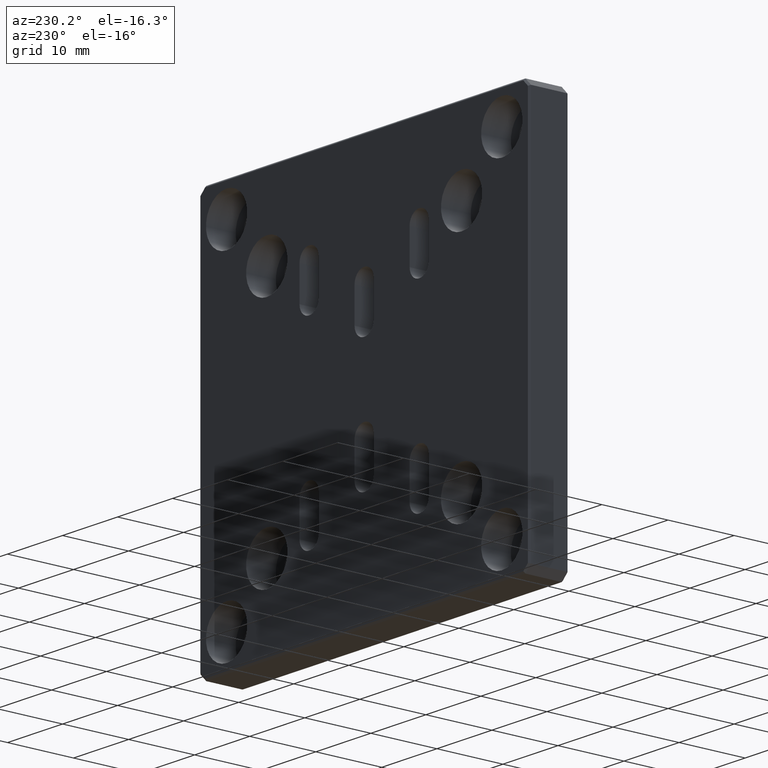
[diagram: clean part render]
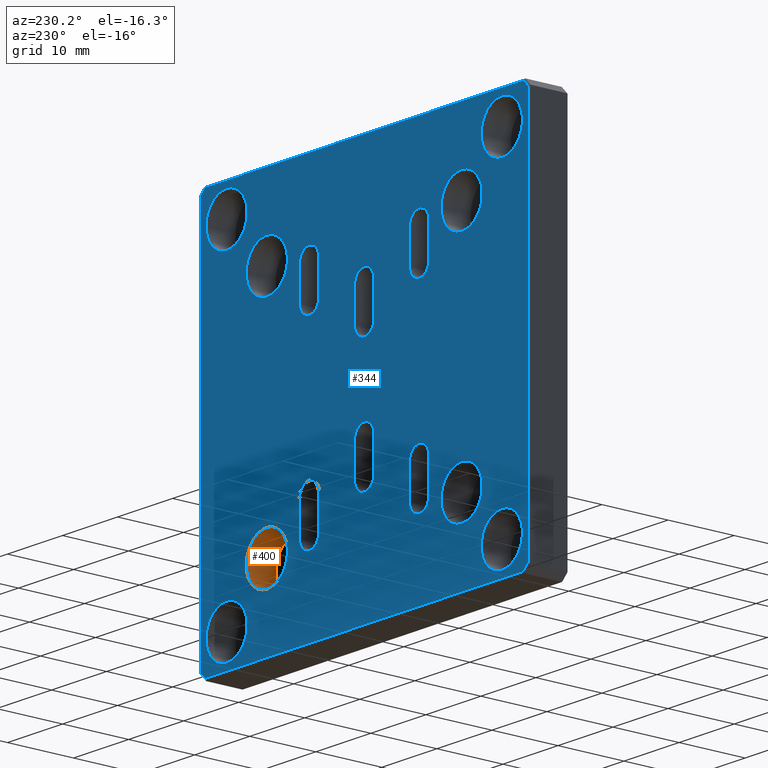
[diagram: same view with the hole feature highlighted: cylindrical wall and planar end face, labeled with their STEP entity ids]
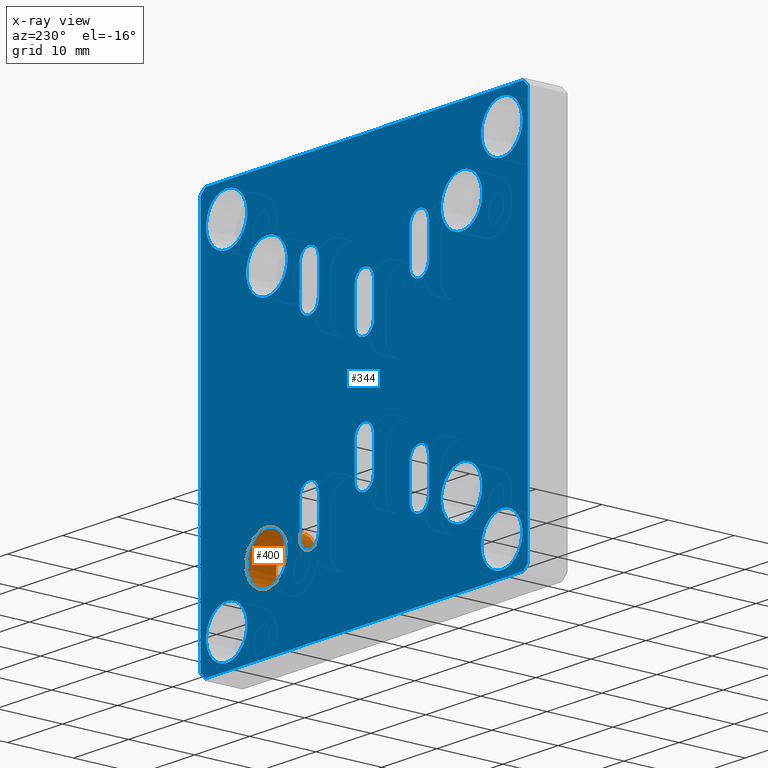
[diagram: x-ray of the same camera — body ghosted, the hole faces saturated]
A machine part, auxiliary view. The highlighted faces form one hole feature of diameter 7.5 mm: the cylindrical wall (entity #400, orange) and its adjacent planar end face (entity #344, blue) — they share a circular edge in the B-rep.
The next image is the same camera in x-ray (body ghosted, the hole faces saturated) — the bore reads through the body.
Wall:
#86 = EDGE_LOOP ( 'NONE', ( #2276 ) ) ;
#127 = CIRCLE ( 'NONE', #378, 3.750000000000003553 ) ;
#133 = DIRECTION ( 'NONE',  ( 0.000000000000000000, 0.000000000000000000, 1.000000000000000000 ) ) ;
#273 = CARTESIAN_POINT ( 'NONE',  ( 17.69999999999999218, 1.499999999999999556, -13.94999999999999041 ) ) ;
#281 = AXIS2_PLACEMENT_3D ( 'NONE', #790, #594, #133 ) ;
#304 = CYLINDRICAL_SURFACE ( 'NONE', #999, 3.750000000000003553 ) ;
#378 = AXIS2_PLACEMENT_3D ( 'NONE', #2541, #2336, #434 ) ;
#400 = ADVANCED_FACE ( 'NONE', ( #789, #1485 ), #304, .F. ) ;
#434 = DIRECTION ( 'NONE',  ( 0.000000000000000000, 0.000000000000000000, 1.000000000000000000 ) ) ;
#487 = VERTEX_POINT ( 'NONE', #273 ) ;
#594 = DIRECTION ( 'NONE',  ( -0.000000000000000000, 1.000000000000000000, -0.000000000000000000 ) ) ;
#789 = FACE_OUTER_BOUND ( 'NONE', #1753, .T. ) ;
#790 = CARTESIAN_POINT ( 'NONE',  ( 17.69999999999999218, 1.499999999999999556, -17.69999999999999218 ) ) ;
#999 = AXIS2_PLACEMENT_3D ( 'NONE', #2956, #1011, #2656 ) ;
#1011 = DIRECTION ( 'NONE',  ( -0.000000000000000000, 1.000000000000000000, -0.000000000000000000 ) ) ;
#1283 = ORIENTED_EDGE ( 'NONE', *, *, #1644, .F. ) ;
#1443 = CARTESIAN_POINT ( 'NONE',  ( 17.69999999999999218, 6.000000000000003553, -13.94999999999999041 ) ) ;
#1485 = FACE_OUTER_BOUND ( 'NONE', #86, .T. ) ;
#1644 = EDGE_CURVE ( 'NONE', #487, #487, #2387, .T. ) ;
#1753 = EDGE_LOOP ( 'NONE', ( #1283 ) ) ;
#2113 = VERTEX_POINT ( 'NONE', #1443 ) ;
#2276 = ORIENTED_EDGE ( 'NONE', *, *, #2582, .T. ) ;
#2336 = DIRECTION ( 'NONE',  ( -0.000000000000000000, 1.000000000000000000, -0.000000000000000000 ) ) ;
#2387 = CIRCLE ( 'NONE', #281, 3.750000000000003553 ) ;
#2541 = CARTESIAN_POINT ( 'NONE',  ( 17.69999999999999218, 6.000000000000003553, -17.69999999999999218 ) ) ;
#2582 = EDGE_CURVE ( 'NONE', #2113, #2113, #127, .T. ) ;
#2656 = DIRECTION ( 'NONE',  ( 0.000000000000000000, 0.000000000000000000, 1.000000000000000000 ) ) ;
#2956 = CARTESIAN_POINT ( 'NONE',  ( 17.69999999999999218, 6.000000000000000000, -17.69999999999999218 ) ) ;
End face:
#5 = DIRECTION ( 'NONE',  ( 0.000000000000000000, 0.000000000000000000, -1.000000000000000000 ) ) ;
#19 = EDGE_LOOP ( 'NONE', ( #1852 ) ) ;
#21 = AXIS2_PLACEMENT_3D ( 'NONE', #831, #96, #336 ) ;
#26 = LINE ( 'NONE', #956, #2483 ) ;
#31 = AXIS2_PLACEMENT_3D ( 'NONE', #1971, #2254, #2452 ) ;
#34 = CARTESIAN_POINT ( 'NONE',  ( -25.00000000000000000, 6.000000000000003553, -21.24999999999998934 ) ) ;
#35 = LINE ( 'NONE', #978, #914 ) ;
#36 = CARTESIAN_POINT ( 'NONE',  ( 4.336808689942017736E-16, 6.000000000000000000, -11.90000000000000036 ) ) ;
#69 = EDGE_LOOP ( 'NONE', ( #657, #1104, #2997, #2372 ) ) ;
#74 = VECTOR ( 'NONE', #1289, 1000.000000000000000 ) ;
#79 = DIRECTION ( 'NONE',  ( 0.000000000000000000, 1.000000000000000000, 0.000000000000000000 ) ) ;
#84 = ORIENTED_EDGE ( 'NONE', *, *, #1230, .F. ) ;
#95 = VERTEX_POINT ( 'NONE', #2763 ) ;
#96 = DIRECTION ( 'NONE',  ( 0.000000000000000000, 1.000000000000000000, 0.000000000000000000 ) ) ;
#114 = DIRECTION ( 'NONE',  ( 0.000000000000000000, 0.000000000000000000, 1.000000000000000000 ) ) ;
#116 = VECTOR ( 'NONE', #125, 1000.000000000000000 ) ;
#117 = CARTESIAN_POINT ( 'NONE',  ( -8.250000000000001776, 6.000000000000000000, -11.75000000000000355 ) ) ;
#121 = VERTEX_POINT ( 'NONE', #2272 ) ;
#125 = DIRECTION ( 'NONE',  ( 0.000000000000000000, 0.000000000000000000, -1.000000000000000000 ) ) ;
#126 = VERTEX_POINT ( 'NONE', #1517 ) ;
#127 = CIRCLE ( 'NONE', #378, 3.750000000000003553 ) ;
#134 = CARTESIAN_POINT ( 'NONE',  ( 10.00000000000000178, 6.000000000000000000, 11.75000000000000355 ) ) ;
#161 = LINE ( 'NONE', #874, #1360 ) ;
#165 = CARTESIAN_POINT ( 'NONE',  ( 8.250000000000001776, 6.000000000000000000, 0.000000000000000000 ) ) ;
#171 = VECTOR ( 'NONE', #1401, 1000.000000000000000 ) ;
#181 = EDGE_CURVE ( 'NONE', #2886, #2886, #1048, .T. ) ;
#182 = VECTOR ( 'NONE', #1446, 1000.000000000000000 ) ;
#183 = CARTESIAN_POINT ( 'NONE',  ( 1.750000000000000444, 6.000000000000000000, 0.000000000000000000 ) ) ;
#196 = CARTESIAN_POINT ( 'NONE',  ( -11.75000000000000178, 6.000000000000000000, -11.75000000000000355 ) ) ;
#199 = VERTEX_POINT ( 'NONE', #2504 ) ;
#205 = ORIENTED_EDGE ( 'NONE', *, *, #849, .T. ) ;
#235 = CIRCLE ( 'NONE', #1947, 1.749999999999999778 ) ;
#246 = FACE_BOUND ( 'NONE', #2845, .T. ) ;
#247 = DIRECTION ( 'NONE',  ( 0.000000000000000000, 0.000000000000000000, 1.000000000000000000 ) ) ;
#252 = CARTESIAN_POINT ( 'NONE',  ( 24.99999999999997158, 6.000000000000003553, -24.99999999999996447 ) ) ;
#258 = CIRCLE ( 'NONE', #1880, 1.749999999999999778 ) ;
#260 = FACE_BOUND ( 'NONE', #2244, .T. ) ;
#261 = DIRECTION ( 'NONE',  ( 0.000000000000000000, 1.000000000000000000, 0.000000000000000000 ) ) ;
#264 = ORIENTED_EDGE ( 'NONE', *, *, #2016, .T. ) ;
#270 = EDGE_CURVE ( 'NONE', #862, #2838, #258, .T. ) ;
#271 = AXIS2_PLACEMENT_3D ( 'NONE', #2937, #79, #2717 ) ;
#328 = CARTESIAN_POINT ( 'NONE',  ( -10.00000000000000178, 6.000000000000000000, -11.75000000000000355 ) ) ;
#334 = DIRECTION ( 'NONE',  ( 0.000000000000000000, 0.000000000000000000, 1.000000000000000000 ) ) ;
#336 = DIRECTION ( 'NONE',  ( 0.000000000000000000, 0.000000000000000000, 1.000000000000000000 ) ) ;
#344 = ADVANCED_FACE ( 'NONE', ( #493, #1436, #1646, #2354, #478, #2585, #2368, #246, #2118, #955, #1891, #2835, #727, #2602, #260 ), #1079, .T. ) ;
#352 = DIRECTION ( 'NONE',  ( -0.7071067811865474617, 0.000000000000000000, 0.7071067811865474617 ) ) ;
#356 = ORIENTED_EDGE ( 'NONE', *, *, #1022, .T. ) ;
#373 = CIRCLE ( 'NONE', #2093, 1.749999999999998002 ) ;
#378 = AXIS2_PLACEMENT_3D ( 'NONE', #2541, #2336, #434 ) ;
#393 = EDGE_LOOP ( 'NONE', ( #2780, #2463, #1514, #2555 ) ) ;
#401 = CARTESIAN_POINT ( 'NONE',  ( 4.336808689942017736E-16, 6.000000000000000000, -6.899999999999999467 ) ) ;
#402 = CARTESIAN_POINT ( 'NONE',  ( 8.250000000000001776, 6.000000000000000000, 16.75000000000000355 ) ) ;
#413 = DIRECTION ( 'NONE',  ( 0.000000000000000000, 0.000000000000000000, 1.000000000000000000 ) ) ;
#423 = AXIS2_PLACEMENT_3D ( 'NONE', #328, #993, #573 ) ;
#426 = LINE ( 'NONE', #1376, #116 ) ;
#431 = CIRCLE ( 'NONE', #1747, 1.749999999999999778 ) ;
#434 = DIRECTION ( 'NONE',  ( 0.000000000000000000, 0.000000000000000000, 1.000000000000000000 ) ) ;
#467 = CARTESIAN_POINT ( 'NONE',  ( -28.89644660940672694, 6.000000000000000000, 29.74999999999999289 ) ) ;
#478 = FACE_BOUND ( 'NONE', #2524, .T. ) ;
#485 = DIRECTION ( 'NONE',  ( 0.000000000000000000, 1.000000000000000000, 0.000000000000000000 ) ) ;
#493 = FACE_BOUND ( 'NONE', #2537, .T. ) ;
#510 = ORIENTED_EDGE ( 'NONE', *, *, #2447, .T. ) ;
#525 = VERTEX_POINT ( 'NONE', #903 ) ;
#528 = AXIS2_PLACEMENT_3D ( 'NONE', #2007, #1256, #840 ) ;
#531 = VERTEX_POINT ( 'NONE', #734 ) ;
#541 = EDGE_CURVE ( 'NONE', #525, #651, #161, .T. ) ;
#554 = ORIENTED_EDGE ( 'NONE', *, *, #1791, .T. ) ;
#560 = VECTOR ( 'NONE', #2315, 1000.000000000000000 ) ;
#569 = CIRCLE ( 'NONE', #2490, 1.749999999999999778 ) ;
#573 = DIRECTION ( 'NONE',  ( 0.000000000000000000, 0.000000000000000000, 1.000000000000000000 ) ) ;
#574 = VERTEX_POINT ( 'NONE', #2971 ) ;
#576 = LINE ( 'NONE', #825, #1452 ) ;
#589 = VERTEX_POINT ( 'NONE', #2157 ) ;
#597 = CARTESIAN_POINT ( 'NONE',  ( -29.32322330470335814, 6.000000000000000000, -29.32322330470335814 ) ) ;
#611 = LINE ( 'NONE', #165, #74 ) ;
#612 = VERTEX_POINT ( 'NONE', #735 ) ;
#628 = CARTESIAN_POINT ( 'NONE',  ( 24.99999999999997868, 6.000000000000003553, 25.00000000000003908 ) ) ;
#639 = CARTESIAN_POINT ( 'NONE',  ( 28.89644660940671983, 6.000000000000000000, 29.74999999999999289 ) ) ;
#651 = VERTEX_POINT ( 'NONE', #3052 ) ;
#657 = ORIENTED_EDGE ( 'NONE', *, *, #1458, .F. ) ;
#670 = CIRCLE ( 'NONE', #765, 3.750000000000003553 ) ;
#687 = CARTESIAN_POINT ( 'NONE',  ( 29.75000000000000000, 6.000000000000000000, -29.00000000000001066 ) ) ;
#688 = EDGE_CURVE ( 'NONE', #95, #2229, #35, .T. ) ;
#705 = DIRECTION ( 'NONE',  ( 0.7071067811865474617, 0.000000000000000000, -0.7071067811865474617 ) ) ;
#709 = CARTESIAN_POINT ( 'NONE',  ( 17.69999999999999218, 6.000000000000003553, 17.70000000000000639 ) ) ;
#710 = ORIENTED_EDGE ( 'NONE', *, *, #1926, .T. ) ;
#719 = VERTEX_POINT ( 'NONE', #2393 ) ;
#725 = AXIS2_PLACEMENT_3D ( 'NONE', #36, #968, #1920 ) ;
#727 = FACE_BOUND ( 'NONE', #1292, .T. ) ;
#733 = CARTESIAN_POINT ( 'NONE',  ( 10.00000000000000178, 6.000000000000000000, 16.75000000000000355 ) ) ;
#734 = CARTESIAN_POINT ( 'NONE',  ( 24.99999999999997158, 6.000000000000003553, -21.24999999999996092 ) ) ;
#735 = CARTESIAN_POINT ( 'NONE',  ( 29.75000000000000000, 6.000000000000000000, -28.89644660940674115 ) ) ;
#736 = ORIENTED_EDGE ( 'NONE', *, *, #2895, .F. ) ;
#740 = CARTESIAN_POINT ( 'NONE',  ( -10.00000000000000178, 6.000000000000000000, 16.75000000000000355 ) ) ;
#741 = ORIENTED_EDGE ( 'NONE', *, *, #1879, .T. ) ;
#745 = DIRECTION ( 'NONE',  ( 0.7071067811865474617, 0.000000000000000000, 0.7071067811865474617 ) ) ;
#749 = CARTESIAN_POINT ( 'NONE',  ( -17.70000000000000639, 6.000000000000003553, 17.70000000000000639 ) ) ;
#750 = EDGE_CURVE ( 'NONE', #1262, #525, #1210, .T. ) ;
#765 = AXIS2_PLACEMENT_3D ( 'NONE', #749, #1935, #1225 ) ;
#773 = CARTESIAN_POINT ( 'NONE',  ( 1.750000000000000444, 6.000000000000000000, 11.90000000000000036 ) ) ;
#774 = ORIENTED_EDGE ( 'NONE', *, *, #1224, .T. ) ;
#792 = VERTEX_POINT ( 'NONE', #1037 ) ;
#798 = CARTESIAN_POINT ( 'NONE',  ( -10.00000000000000178, 6.000000000000000000, 11.75000000000000355 ) ) ;
#802 = VECTOR ( 'NONE', #2932, 1000.000000000000000 ) ;
#808 = CARTESIAN_POINT ( 'NONE',  ( 8.250000000000001776, 6.000000000000000000, -11.75000000000000355 ) ) ;
#813 = DIRECTION ( 'NONE',  ( 0.000000000000000000, 0.000000000000000000, 1.000000000000000000 ) ) ;
#822 = CARTESIAN_POINT ( 'NONE',  ( -11.75000000000000178, 6.000000000000000000, -16.75000000000000355 ) ) ;
#825 = CARTESIAN_POINT ( 'NONE',  ( -11.75000000000000178, 6.000000000000000000, 0.000000000000000000 ) ) ;
#831 = CARTESIAN_POINT ( 'NONE',  ( 10.00000000000000178, 6.000000000000000000, -11.75000000000000355 ) ) ;
#833 = VERTEX_POINT ( 'NONE', #1759 ) ;
#840 = DIRECTION ( 'NONE',  ( 0.000000000000000000, 0.000000000000000000, 1.000000000000000000 ) ) ;
#846 = DIRECTION ( 'NONE',  ( 0.000000000000000000, 1.000000000000000000, 0.000000000000000000 ) ) ;
#849 = EDGE_CURVE ( 'NONE', #1166, #915, #2533, .T. ) ;
#854 = EDGE_CURVE ( 'NONE', #121, #2547, #2913, .T. ) ;
#862 = VERTEX_POINT ( 'NONE', #822 ) ;
#864 = CARTESIAN_POINT ( 'NONE',  ( -8.250000000000001776, 6.000000000000000000, 11.75000000000000355 ) ) ;
#867 = VECTOR ( 'NONE', #1832, 1000.000000000000114 ) ;
#874 = CARTESIAN_POINT ( 'NONE',  ( -11.75000000000000178, 6.000000000000000000, 0.000000000000000000 ) ) ;
#882 = VERTEX_POINT ( 'NONE', #2697 ) ;
#903 = CARTESIAN_POINT ( 'NONE',  ( -11.75000000000000178, 6.000000000000000000, 11.75000000000000355 ) ) ;
#914 = VECTOR ( 'NONE', #745, 1000.000000000000114 ) ;
#915 = VERTEX_POINT ( 'NONE', #196 ) ;
#917 = AXIS2_PLACEMENT_3D ( 'NONE', #252, #1857, #2329 ) ;
#919 = DIRECTION ( 'NONE',  ( 1.000000000000000000, 0.000000000000000000, 0.000000000000000000 ) ) ;
#923 = VERTEX_POINT ( 'NONE', #639 ) ;
#938 = CARTESIAN_POINT ( 'NONE',  ( -8.250000000000001776, 6.000000000000000000, 0.000000000000000000 ) ) ;
#948 = CARTESIAN_POINT ( 'NONE',  ( -17.70000000000000639, 6.000000000000003553, -13.94999999999999041 ) ) ;
#952 = LINE ( 'NONE', #2611, #3041 ) ;
#955 = FACE_BOUND ( 'NONE', #1234, .T. ) ;
#956 = CARTESIAN_POINT ( 'NONE',  ( 8.250000000000001776, 6.000000000000000000, 0.000000000000000000 ) ) ;
#968 = DIRECTION ( 'NONE',  ( -0.000000000000000000, -1.000000000000000000, -0.000000000000000000 ) ) ;
#970 = AXIS2_PLACEMENT_3D ( 'NONE', #2601, #2847, #2860 ) ;
#974 = CIRCLE ( 'NONE', #528, 3.750000000000003553 ) ;
#978 = CARTESIAN_POINT ( 'NONE',  ( -29.32322330470335814, 6.000000000000000000, 29.32322330470335814 ) ) ;
#983 = DIRECTION ( 'NONE',  ( -0.000000000000000000, -1.000000000000000000, -0.000000000000000000 ) ) ;
#993 = DIRECTION ( 'NONE',  ( -0.000000000000000000, -1.000000000000000000, -0.000000000000000000 ) ) ;
#1000 = AXIS2_PLACEMENT_3D ( 'NONE', #628, #1551, #413 ) ;
#1009 = CIRCLE ( 'NONE', #2384, 1.749999999999999778 ) ;
#1014 = VECTOR ( 'NONE', #1862, 1000.000000000000000 ) ;
#1019 = ORIENTED_EDGE ( 'NONE', *, *, #688, .T. ) ;
#1020 = EDGE_CURVE ( 'NONE', #833, #2499, #426, .T. ) ;
#1022 = EDGE_CURVE ( 'NONE', #2229, #923, #2411, .T. ) ;
#1035 = EDGE_CURVE ( 'NONE', #1671, #612, #2112, .T. ) ;
#1037 = CARTESIAN_POINT ( 'NONE',  ( -1.749999999999999556, 6.000000000000000000, 6.899999999999999467 ) ) ;
#1041 = CARTESIAN_POINT ( 'NONE',  ( 0.000000000000000000, 6.000000000000000000, 0.000000000000000000 ) ) ;
#1044 = DIRECTION ( 'NONE',  ( -0.000000000000000000, -1.000000000000000000, -0.000000000000000000 ) ) ;
#1048 = CIRCLE ( 'NONE', #1000, 3.750000000000003553 ) ;
#1055 = EDGE_LOOP ( 'NONE', ( #1546, #2925, #554, #205 ) ) ;
#1077 = ORIENTED_EDGE ( 'NONE', *, *, #1342, .T. ) ;
#1079 = PLANE ( 'NONE',  #1352 ) ;
#1085 = ORIENTED_EDGE ( 'NONE', *, *, #2983, .T. ) ;
#1090 = EDGE_CURVE ( 'NONE', #531, #531, #3034, .T. ) ;
#1101 = LINE ( 'NONE', #597, #1307 ) ;
#1104 = ORIENTED_EDGE ( 'NONE', *, *, #541, .F. ) ;
#1134 = VERTEX_POINT ( 'NONE', #1869 ) ;
#1143 = VERTEX_POINT ( 'NONE', #1720 ) ;
#1157 = LINE ( 'NONE', #2088, #1014 ) ;
#1165 = VERTEX_POINT ( 'NONE', #2458 ) ;
#1166 = VERTEX_POINT ( 'NONE', #117 ) ;
#1167 = VECTOR ( 'NONE', #919, 1000.000000000000000 ) ;
#1180 = LINE ( 'NONE', #1603, #867 ) ;
#1181 = EDGE_CURVE ( 'NONE', #1735, #833, #1602, .T. ) ;
#1190 = EDGE_LOOP ( 'NONE', ( #1525 ) ) ;
#1196 = CARTESIAN_POINT ( 'NONE',  ( 1.750000000000000444, 6.000000000000000000, 6.899999999999999467 ) ) ;
#1197 = CARTESIAN_POINT ( 'NONE',  ( 28.99999999999997868, 6.000000000000000000, 29.74999999999999289 ) ) ;
#1208 = CIRCLE ( 'NONE', #271, 1.749999999999999778 ) ;
#1210 = CIRCLE ( 'NONE', #2230, 1.749999999999999778 ) ;
#1224 = EDGE_CURVE ( 'NONE', #2547, #199, #1101, .T. ) ;
#1225 = DIRECTION ( 'NONE',  ( 0.000000000000000000, 0.000000000000000000, 1.000000000000000000 ) ) ;
#1230 = EDGE_CURVE ( 'NONE', #2068, #2313, #2724, .T. ) ;
#1234 = EDGE_LOOP ( 'NONE', ( #2691 ) ) ;
#1252 = EDGE_CURVE ( 'NONE', #2313, #792, #1009, .T. ) ;
#1256 = DIRECTION ( 'NONE',  ( -0.000000000000000000, 1.000000000000000000, -0.000000000000000000 ) ) ;
#1262 = VERTEX_POINT ( 'NONE', #864 ) ;
#1270 = CARTESIAN_POINT ( 'NONE',  ( -28.99999999999998934, 6.000000000000000000, -29.75000000000000711 ) ) ;
#1289 = DIRECTION ( 'NONE',  ( 0.000000000000000000, 0.000000000000000000, -1.000000000000000000 ) ) ;
#1292 = EDGE_LOOP ( 'NONE', ( #741, #2247, #510, #2510 ) ) ;
#1307 = VECTOR ( 'NONE', #352, 1000.000000000000114 ) ;
#1342 = EDGE_CURVE ( 'NONE', #612, #121, #1180, .T. ) ;
#1352 = AXIS2_PLACEMENT_3D ( 'NONE', #1041, #1516, #2175 ) ;
#1360 = VECTOR ( 'NONE', #2086, 1000.000000000000000 ) ;
#1376 = CARTESIAN_POINT ( 'NONE',  ( 11.75000000000000178, 6.000000000000000000, 0.000000000000000000 ) ) ;
#1387 = ORIENTED_EDGE ( 'NONE', *, *, #2552, .T. ) ;
#1401 = DIRECTION ( 'NONE',  ( 0.000000000000000000, -0.000000000000000000, 1.000000000000000000 ) ) ;
#1406 = DIRECTION ( 'NONE',  ( 0.000000000000000000, -0.000000000000000000, 1.000000000000000000 ) ) ;
#1422 = LINE ( 'NONE', #2148, #2592 ) ;
#1423 = CARTESIAN_POINT ( 'NONE',  ( -28.89644660940671272, 6.000000000000000000, -29.75000000000000711 ) ) ;
#1436 = FACE_BOUND ( 'NONE', #393, .T. ) ;
#1443 = CARTESIAN_POINT ( 'NONE',  ( 17.69999999999999218, 6.000000000000003553, -13.94999999999999041 ) ) ;
#1446 = DIRECTION ( 'NONE',  ( 0.000000000000000000, 0.000000000000000000, -1.000000000000000000 ) ) ;
#1451 = EDGE_LOOP ( 'NONE', ( #2748 ) ) ;
#1452 = VECTOR ( 'NONE', #1515, 1000.000000000000000 ) ;
#1455 = EDGE_CURVE ( 'NONE', #719, #719, #2929, .T. ) ;
#1458 = EDGE_CURVE ( 'NONE', #651, #1134, #373, .T. ) ;
#1476 = DIRECTION ( 'NONE',  ( 0.000000000000000000, -0.000000000000000000, 1.000000000000000000 ) ) ;
#1478 = ORIENTED_EDGE ( 'NONE', *, *, #2642, .F. ) ;
#1486 = EDGE_CURVE ( 'NONE', #1143, #1735, #26, .T. ) ;
#1496 = CARTESIAN_POINT ( 'NONE',  ( -25.00000000000002487, 6.000000000000003553, 28.75000000000004263 ) ) ;
#1512 = DIRECTION ( 'NONE',  ( 0.000000000000000000, 0.000000000000000000, 1.000000000000000000 ) ) ;
#1514 = ORIENTED_EDGE ( 'NONE', *, *, #1181, .F. ) ;
#1515 = DIRECTION ( 'NONE',  ( 0.000000000000000000, 0.000000000000000000, -1.000000000000000000 ) ) ;
#1516 = DIRECTION ( 'NONE',  ( 0.000000000000000000, 1.000000000000000000, 0.000000000000000000 ) ) ;
#1517 = CARTESIAN_POINT ( 'NONE',  ( 1.750000000000000444, 6.000000000000000000, -11.90000000000000036 ) ) ;
#1521 = CARTESIAN_POINT ( 'NONE',  ( 1.750000000000000444, 6.000000000000000000, 0.000000000000000000 ) ) ;
#1525 = ORIENTED_EDGE ( 'NONE', *, *, #1090, .F. ) ;
#1546 = ORIENTED_EDGE ( 'NONE', *, *, #2883, .T. ) ;
#1551 = DIRECTION ( 'NONE',  ( -0.000000000000000000, 1.000000000000000000, -0.000000000000000000 ) ) ;
#1570 = EDGE_CURVE ( 'NONE', #2625, #2625, #670, .T. ) ;
#1573 = ORIENTED_EDGE ( 'NONE', *, *, #2425, .T. ) ;
#1602 = CIRCLE ( 'NONE', #21, 1.749999999999999778 ) ;
#1603 = CARTESIAN_POINT ( 'NONE',  ( 29.32322330470336880, 6.000000000000000000, -29.32322330470336880 ) ) ;
#1605 = AXIS2_PLACEMENT_3D ( 'NONE', #709, #2614, #2355 ) ;
#1645 = DIRECTION ( 'NONE',  ( 1.156482317317871478E-16, 0.000000000000000000, 1.000000000000000000 ) ) ;
#1646 = FACE_BOUND ( 'NONE', #69, .T. ) ;
#1671 = VERTEX_POINT ( 'NONE', #2469 ) ;
#1688 = ORIENTED_EDGE ( 'NONE', *, *, #1455, .F. ) ;
#1699 = CARTESIAN_POINT ( 'NONE',  ( 11.75000000000000178, 6.000000000000000000, 11.75000000000000355 ) ) ;
#1702 = CARTESIAN_POINT ( 'NONE',  ( 1.750000000000000444, 6.000000000000000000, -6.899999999999999467 ) ) ;
#1720 = CARTESIAN_POINT ( 'NONE',  ( 8.250000000000001776, 6.000000000000000000, -16.75000000000000355 ) ) ;
#1735 = VERTEX_POINT ( 'NONE', #808 ) ;
#1747 = AXIS2_PLACEMENT_3D ( 'NONE', #2594, #485, #2360 ) ;
#1759 = CARTESIAN_POINT ( 'NONE',  ( 11.75000000000000178, 6.000000000000000000, -11.75000000000000355 ) ) ;
#1783 = ORIENTED_EDGE ( 'NONE', *, *, #2619, .F. ) ;
#1791 = EDGE_CURVE ( 'NONE', #2838, #1166, #2025, .T. ) ;
#1809 = VERTEX_POINT ( 'NONE', #2273 ) ;
#1816 = LINE ( 'NONE', #2774, #2994 ) ;
#1832 = DIRECTION ( 'NONE',  ( -0.7071067811865474617, 0.000000000000000000, -0.7071067811865474617 ) ) ;
#1852 = ORIENTED_EDGE ( 'NONE', *, *, #181, .F. ) ;
#1857 = DIRECTION ( 'NONE',  ( -0.000000000000000000, 1.000000000000000000, -0.000000000000000000 ) ) ;
#1862 = DIRECTION ( 'NONE',  ( 0.000000000000000000, -0.000000000000000000, 1.000000000000000000 ) ) ;
#1869 = CARTESIAN_POINT ( 'NONE',  ( -8.250000000000001776, 6.000000000000000000, 16.75000000000000355 ) ) ;
#1879 = EDGE_CURVE ( 'NONE', #1953, #882, #1157, .T. ) ;
#1880 = AXIS2_PLACEMENT_3D ( 'NONE', #1911, #983, #3056 ) ;
#1891 = FACE_BOUND ( 'NONE', #2928, .T. ) ;
#1911 = CARTESIAN_POINT ( 'NONE',  ( -10.00000000000000178, 6.000000000000000000, -16.75000000000000355 ) ) ;
#1918 = CARTESIAN_POINT ( 'NONE',  ( 24.99999999999997868, 6.000000000000003553, 28.75000000000004263 ) ) ;
#1920 = DIRECTION ( 'NONE',  ( 0.000000000000000000, 0.000000000000000000, 1.000000000000000000 ) ) ;
#1926 = EDGE_CURVE ( 'NONE', #923, #1671, #952, .T. ) ;
#1929 = DIRECTION ( 'NONE',  ( 0.000000000000000000, 1.000000000000000000, 0.000000000000000000 ) ) ;
#1935 = DIRECTION ( 'NONE',  ( -0.000000000000000000, 1.000000000000000000, -0.000000000000000000 ) ) ;
#1947 = AXIS2_PLACEMENT_3D ( 'NONE', #401, #1044, #334 ) ;
#1953 = VERTEX_POINT ( 'NONE', #1699 ) ;
#1958 = CARTESIAN_POINT ( 'NONE',  ( -8.250000000000001776, 6.000000000000000000, -16.75000000000000355 ) ) ;
#1969 = EDGE_CURVE ( 'NONE', #574, #1809, #1422, .T. ) ;
#1971 = CARTESIAN_POINT ( 'NONE',  ( -25.00000000000002487, 6.000000000000003553, 25.00000000000003908 ) ) ;
#1977 = CARTESIAN_POINT ( 'NONE',  ( 4.336808689942017736E-16, 6.000000000000000000, 6.899999999999999467 ) ) ;
#1987 = EDGE_CURVE ( 'NONE', #1134, #1262, #2131, .T. ) ;
#2007 = CARTESIAN_POINT ( 'NONE',  ( -25.00000000000000000, 6.000000000000003553, -24.99999999999998934 ) ) ;
#2016 = EDGE_CURVE ( 'NONE', #1809, #126, #2741, .T. ) ;
#2025 = LINE ( 'NONE', #2788, #2836 ) ;
#2046 = VECTOR ( 'NONE', #2977, 1000.000000000000000 ) ;
#2068 = VERTEX_POINT ( 'NONE', #773 ) ;
#2086 = DIRECTION ( 'NONE',  ( 0.000000000000000000, -0.000000000000000000, 1.000000000000000000 ) ) ;
#2087 = VERTEX_POINT ( 'NONE', #402 ) ;
#2088 = CARTESIAN_POINT ( 'NONE',  ( 11.75000000000000178, 6.000000000000000000, 0.000000000000000000 ) ) ;
#2089 = LINE ( 'NONE', #3042, #2298 ) ;
#2093 = AXIS2_PLACEMENT_3D ( 'NONE', #740, #261, #247 ) ;
#2112 = LINE ( 'NONE', #687, #560 ) ;
#2113 = VERTEX_POINT ( 'NONE', #1443 ) ;
#2118 = FACE_BOUND ( 'NONE', #19, .T. ) ;
#2131 = LINE ( 'NONE', #938, #182 ) ;
#2146 = VERTEX_POINT ( 'NONE', #34 ) ;
#2148 = CARTESIAN_POINT ( 'NONE',  ( -1.749999999999999556, 6.000000000000000000, 0.000000000000000000 ) ) ;
#2157 = CARTESIAN_POINT ( 'NONE',  ( -1.749999999999999556, 6.000000000000000000, 11.90000000000000036 ) ) ;
#2175 = DIRECTION ( 'NONE',  ( 0.000000000000000000, -0.000000000000000000, 1.000000000000000000 ) ) ;
#2206 = DIRECTION ( 'NONE',  ( -0.000000000000000000, -1.000000000000000000, -0.000000000000000000 ) ) ;
#2229 = VERTEX_POINT ( 'NONE', #467 ) ;
#2230 = AXIS2_PLACEMENT_3D ( 'NONE', #798, #1929, #1512 ) ;
#2232 = VERTEX_POINT ( 'NONE', #1496 ) ;
#2244 = EDGE_LOOP ( 'NONE', ( #2278, #264, #1085, #1573 ) ) ;
#2247 = ORIENTED_EDGE ( 'NONE', *, *, #2352, .T. ) ;
#2248 = CIRCLE ( 'NONE', #31, 3.750000000000003553 ) ;
#2254 = DIRECTION ( 'NONE',  ( -0.000000000000000000, 1.000000000000000000, -0.000000000000000000 ) ) ;
#2272 = CARTESIAN_POINT ( 'NONE',  ( 28.89644660940673404, 6.000000000000000000, -29.75000000000000711 ) ) ;
#2273 = CARTESIAN_POINT ( 'NONE',  ( -1.749999999999999556, 6.000000000000000000, -11.90000000000000036 ) ) ;
#2278 = ORIENTED_EDGE ( 'NONE', *, *, #1969, .T. ) ;
#2297 = CIRCLE ( 'NONE', #970, 3.750000000000003553 ) ;
#2298 = VECTOR ( 'NONE', #1406, 1000.000000000000000 ) ;
#2313 = VERTEX_POINT ( 'NONE', #1196 ) ;
#2315 = DIRECTION ( 'NONE',  ( 0.000000000000000000, 0.000000000000000000, -1.000000000000000000 ) ) ;
#2329 = DIRECTION ( 'NONE',  ( 0.000000000000000000, 0.000000000000000000, 1.000000000000000000 ) ) ;
#2336 = DIRECTION ( 'NONE',  ( -0.000000000000000000, 1.000000000000000000, -0.000000000000000000 ) ) ;
#2340 = EDGE_CURVE ( 'NONE', #2499, #1143, #431, .T. ) ;
#2352 = EDGE_CURVE ( 'NONE', #882, #2087, #3045, .T. ) ;
#2354 = FACE_BOUND ( 'NONE', #2871, .T. ) ;
#2355 = DIRECTION ( 'NONE',  ( 0.000000000000000000, 0.000000000000000000, 1.000000000000000000 ) ) ;
#2359 = ORIENTED_EDGE ( 'NONE', *, *, #1252, .F. ) ;
#2360 = DIRECTION ( 'NONE',  ( 0.000000000000000000, 0.000000000000000000, 1.000000000000000000 ) ) ;
#2368 = FACE_BOUND ( 'NONE', #1451, .T. ) ;
#2372 = ORIENTED_EDGE ( 'NONE', *, *, #1987, .F. ) ;
#2375 = VERTEX_POINT ( 'NONE', #948 ) ;
#2384 = AXIS2_PLACEMENT_3D ( 'NONE', #1977, #846, #813 ) ;
#2393 = CARTESIAN_POINT ( 'NONE',  ( 17.69999999999999218, 6.000000000000003553, 21.45000000000000995 ) ) ;
#2403 = ORIENTED_EDGE ( 'NONE', *, *, #2777, .F. ) ;
#2404 = EDGE_CURVE ( 'NONE', #1165, #1953, #569, .T. ) ;
#2411 = LINE ( 'NONE', #1197, #1167 ) ;
#2425 = EDGE_CURVE ( 'NONE', #2735, #574, #235, .T. ) ;
#2447 = EDGE_CURVE ( 'NONE', #2087, #1165, #611, .T. ) ;
#2452 = DIRECTION ( 'NONE',  ( 0.000000000000000000, 0.000000000000000000, 1.000000000000000000 ) ) ;
#2458 = CARTESIAN_POINT ( 'NONE',  ( 8.250000000000001776, 6.000000000000000000, 11.75000000000000355 ) ) ;
#2463 = ORIENTED_EDGE ( 'NONE', *, *, #1020, .F. ) ;
#2469 = CARTESIAN_POINT ( 'NONE',  ( 29.75000000000000000, 6.000000000000000000, 28.89644660940671272 ) ) ;
#2483 = VECTOR ( 'NONE', #1476, 1000.000000000000000 ) ;
#2490 = AXIS2_PLACEMENT_3D ( 'NONE', #134, #2206, #114 ) ;
#2499 = VERTEX_POINT ( 'NONE', #2519 ) ;
#2504 = CARTESIAN_POINT ( 'NONE',  ( -29.75000000000000000, 6.000000000000000000, -28.89644660940671983 ) ) ;
#2505 = DIRECTION ( 'NONE',  ( 0.000000000000000000, -0.000000000000000000, 1.000000000000000000 ) ) ;
#2510 = ORIENTED_EDGE ( 'NONE', *, *, #2404, .T. ) ;
#2519 = CARTESIAN_POINT ( 'NONE',  ( 11.75000000000000178, 6.000000000000000000, -16.75000000000000355 ) ) ;
#2524 = EDGE_LOOP ( 'NONE', ( #1478 ) ) ;
#2533 = CIRCLE ( 'NONE', #423, 1.749999999999999778 ) ;
#2537 = EDGE_LOOP ( 'NONE', ( #736, #1783, #2359, #84 ) ) ;
#2541 = CARTESIAN_POINT ( 'NONE',  ( 17.69999999999999218, 6.000000000000003553, -17.69999999999999218 ) ) ;
#2547 = VERTEX_POINT ( 'NONE', #1423 ) ;
#2552 = EDGE_CURVE ( 'NONE', #199, #95, #1816, .T. ) ;
#2555 = ORIENTED_EDGE ( 'NONE', *, *, #1486, .F. ) ;
#2582 = EDGE_CURVE ( 'NONE', #2113, #2113, #127, .T. ) ;
#2585 = FACE_BOUND ( 'NONE', #1190, .T. ) ;
#2592 = VECTOR ( 'NONE', #5, 1000.000000000000000 ) ;
#2594 = CARTESIAN_POINT ( 'NONE',  ( 10.00000000000000178, 6.000000000000000000, -16.75000000000000355 ) ) ;
#2601 = CARTESIAN_POINT ( 'NONE',  ( -17.70000000000000639, 6.000000000000003553, -17.69999999999999218 ) ) ;
#2602 = FACE_BOUND ( 'NONE', #1055, .T. ) ;
#2607 = DIRECTION ( 'NONE',  ( -0.000000000000000000, -1.000000000000000000, -0.000000000000000000 ) ) ;
#2610 = ORIENTED_EDGE ( 'NONE', *, *, #854, .T. ) ;
#2611 = CARTESIAN_POINT ( 'NONE',  ( 29.32322330470335459, 6.000000000000000000, 29.32322330470335459 ) ) ;
#2614 = DIRECTION ( 'NONE',  ( -0.000000000000000000, 1.000000000000000000, -0.000000000000000000 ) ) ;
#2619 = EDGE_CURVE ( 'NONE', #792, #589, #2089, .T. ) ;
#2625 = VERTEX_POINT ( 'NONE', #2867 ) ;
#2642 = EDGE_CURVE ( 'NONE', #2375, #2375, #2297, .T. ) ;
#2682 = ORIENTED_EDGE ( 'NONE', *, *, #1035, .T. ) ;
#2690 = DIRECTION ( 'NONE',  ( 0.000000000000000000, 0.000000000000000000, 1.000000000000000000 ) ) ;
#2691 = ORIENTED_EDGE ( 'NONE', *, *, #1570, .F. ) ;
#2694 = ORIENTED_EDGE ( 'NONE', *, *, #2781, .F. ) ;
#2697 = CARTESIAN_POINT ( 'NONE',  ( 11.75000000000000178, 6.000000000000000000, 16.75000000000000355 ) ) ;
#2717 = DIRECTION ( 'NONE',  ( 0.000000000000000000, 0.000000000000000000, 1.000000000000000000 ) ) ;
#2724 = LINE ( 'NONE', #1521, #2046 ) ;
#2735 = VERTEX_POINT ( 'NONE', #1702 ) ;
#2741 = CIRCLE ( 'NONE', #725, 1.749999999999999778 ) ;
#2748 = ORIENTED_EDGE ( 'NONE', *, *, #2582, .F. ) ;
#2763 = CARTESIAN_POINT ( 'NONE',  ( -29.74999999999999289, 6.000000000000000000, 28.89644660940672694 ) ) ;
#2774 = CARTESIAN_POINT ( 'NONE',  ( -29.74999999999999289, 6.000000000000000000, 28.99999999999999645 ) ) ;
#2777 = EDGE_CURVE ( 'NONE', #2146, #2146, #974, .T. ) ;
#2780 = ORIENTED_EDGE ( 'NONE', *, *, #2340, .F. ) ;
#2781 = EDGE_CURVE ( 'NONE', #2232, #2232, #2248, .T. ) ;
#2788 = CARTESIAN_POINT ( 'NONE',  ( -8.250000000000001776, 6.000000000000000000, 0.000000000000000000 ) ) ;
#2795 = AXIS2_PLACEMENT_3D ( 'NONE', #733, #2607, #2690 ) ;
#2801 = LINE ( 'NONE', #183, #171 ) ;
#2835 = FACE_OUTER_BOUND ( 'NONE', #2933, .T. ) ;
#2836 = VECTOR ( 'NONE', #2505, 1000.000000000000000 ) ;
#2838 = VERTEX_POINT ( 'NONE', #1958 ) ;
#2845 = EDGE_LOOP ( 'NONE', ( #1688 ) ) ;
#2847 = DIRECTION ( 'NONE',  ( -0.000000000000000000, 1.000000000000000000, -0.000000000000000000 ) ) ;
#2860 = DIRECTION ( 'NONE',  ( 0.000000000000000000, 0.000000000000000000, 1.000000000000000000 ) ) ;
#2867 = CARTESIAN_POINT ( 'NONE',  ( -17.70000000000000639, 6.000000000000003553, 21.45000000000000995 ) ) ;
#2871 = EDGE_LOOP ( 'NONE', ( #2403 ) ) ;
#2883 = EDGE_CURVE ( 'NONE', #915, #862, #576, .T. ) ;
#2886 = VERTEX_POINT ( 'NONE', #1918 ) ;
#2895 = EDGE_CURVE ( 'NONE', #589, #2068, #1208, .T. ) ;
#2913 = LINE ( 'NONE', #1270, #802 ) ;
#2925 = ORIENTED_EDGE ( 'NONE', *, *, #270, .T. ) ;
#2928 = EDGE_LOOP ( 'NONE', ( #2694 ) ) ;
#2929 = CIRCLE ( 'NONE', #1605, 3.750000000000003553 ) ;
#2932 = DIRECTION ( 'NONE',  ( -1.000000000000000000, 0.000000000000000000, 0.000000000000000000 ) ) ;
#2933 = EDGE_LOOP ( 'NONE', ( #356, #710, #2682, #1077, #2610, #774, #1387, #1019 ) ) ;
#2937 = CARTESIAN_POINT ( 'NONE',  ( 4.336808689942017736E-16, 6.000000000000000000, 11.90000000000000036 ) ) ;
#2971 = CARTESIAN_POINT ( 'NONE',  ( -1.749999999999999556, 6.000000000000000000, -6.899999999999999467 ) ) ;
#2977 = DIRECTION ( 'NONE',  ( 0.000000000000000000, 0.000000000000000000, -1.000000000000000000 ) ) ;
#2983 = EDGE_CURVE ( 'NONE', #126, #2735, #2801, .T. ) ;
#2994 = VECTOR ( 'NONE', #1645, 1000.000000000000000 ) ;
#2997 = ORIENTED_EDGE ( 'NONE', *, *, #750, .F. ) ;
#3034 = CIRCLE ( 'NONE', #917, 3.750000000000003553 ) ;
#3041 = VECTOR ( 'NONE', #705, 1000.000000000000114 ) ;
#3042 = CARTESIAN_POINT ( 'NONE',  ( -1.749999999999999556, 6.000000000000000000, 0.000000000000000000 ) ) ;
#3045 = CIRCLE ( 'NONE', #2795, 1.749999999999998002 ) ;
#3052 = CARTESIAN_POINT ( 'NONE',  ( -11.75000000000000178, 6.000000000000000000, 16.75000000000000355 ) ) ;
#3056 = DIRECTION ( 'NONE',  ( 0.000000000000000000, 0.000000000000000000, 1.000000000000000000 ) ) ;